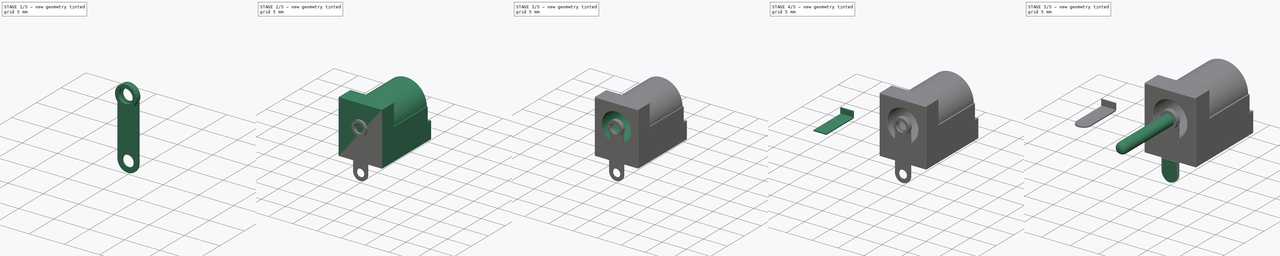
[diagram: build sequence overview — one tinted view per stage of 5, left to right]
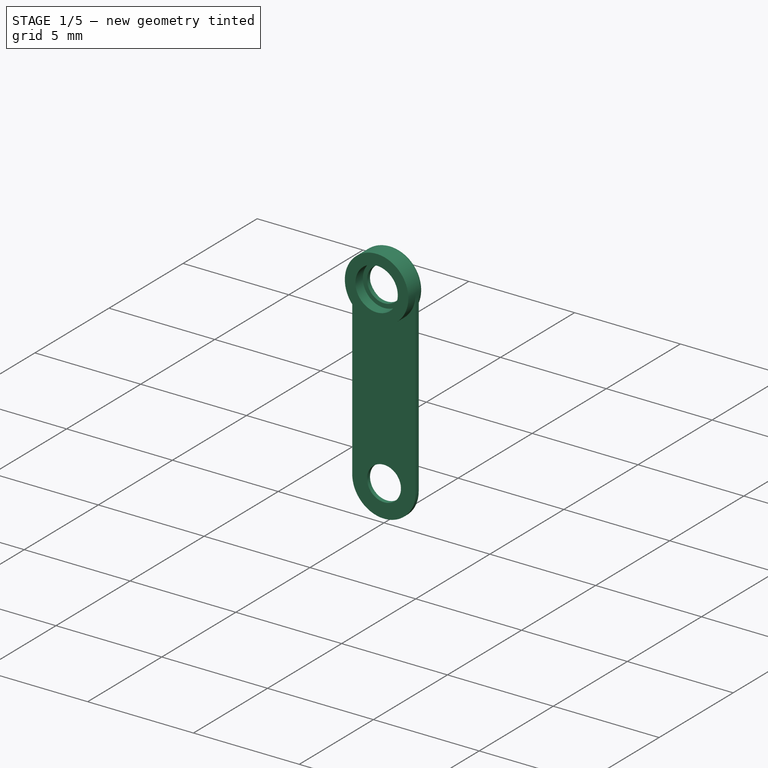
[diagram: stage 1 of 5 — iso view after this stage's code; geometry added in this stage tinted green]
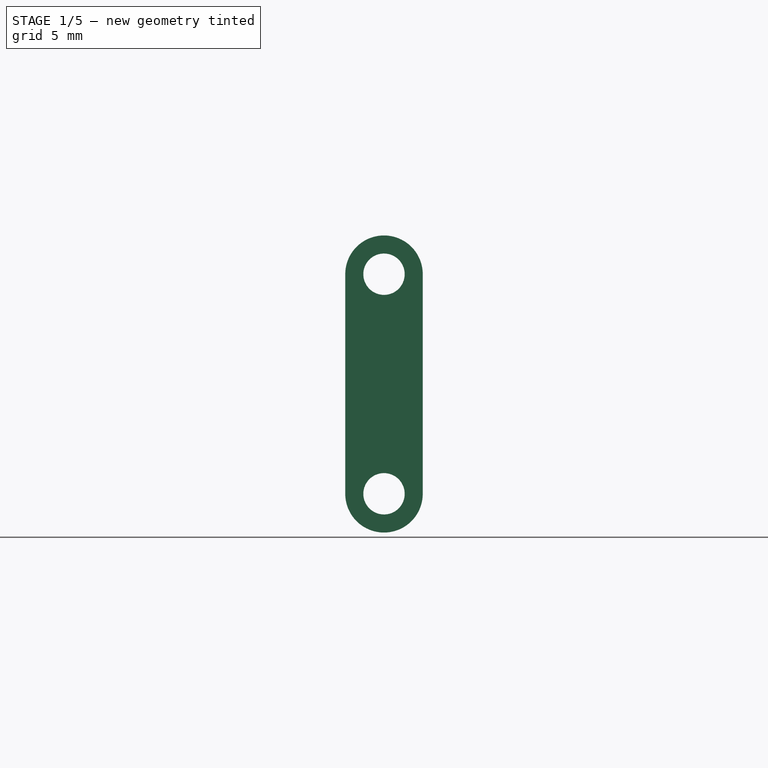
[diagram: stage 1 of 5 — front view after this stage's code; geometry added in this stage tinted green]
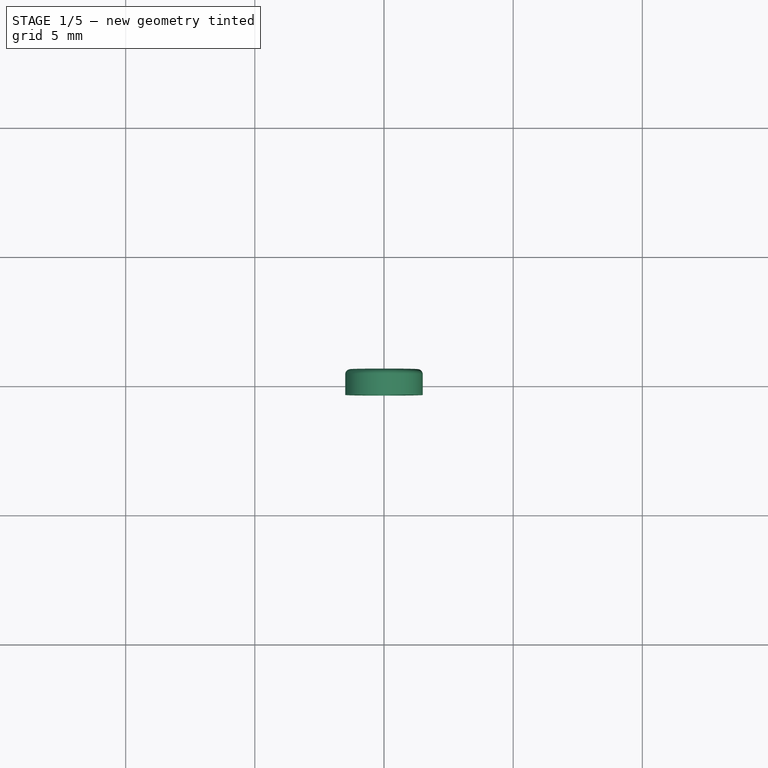
[diagram: stage 1 of 5 — top view after this stage's code; geometry added in this stage tinted green]
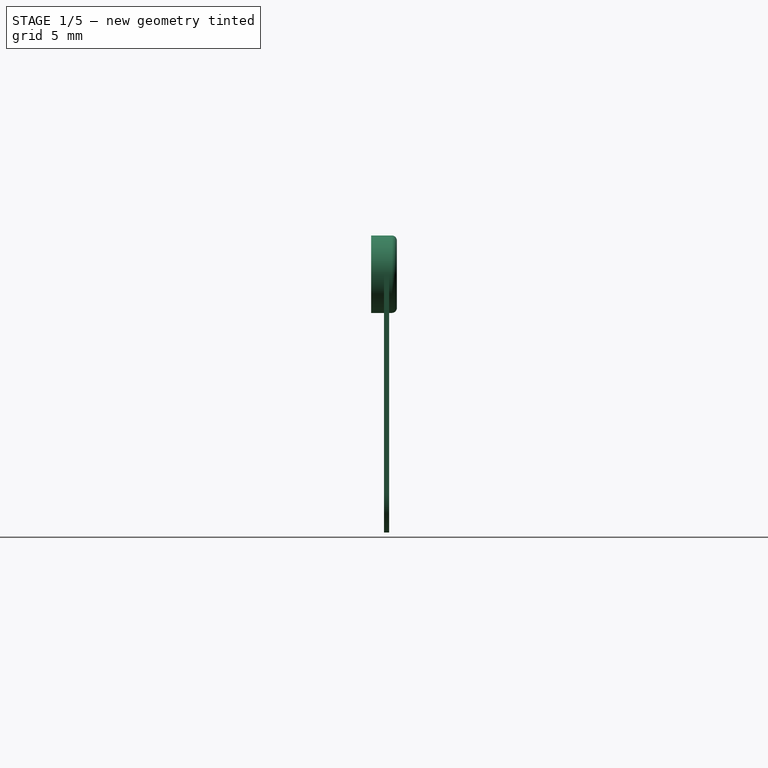
[diagram: stage 1 of 5 — right view after this stage's code; geometry added in this stage tinted green]
FCSTD DOCUMENT  (FreeCAD 0.17R13522 (Git))
Label: LUMBERG-NEB-21-R_color
License: All rights reserved
LicenseURL: http://fr.wikipedia.org/wiki/<copyright redacted>
objects: Sketcher::SketchObject×10, PartDesign::Fillet×9, PartDesign::Pad×7, PartDesign::Body×5, Part::Feature×5, PartDesign::Pocket×1, PartDesign::AdditivePipe×1
note: 47 computed .brp shape members not serialized (recipe doc carries the construction recipe); baked Part::Feature solids carry a one-line shape summary decoded from their .brp

FEATURE [PartDesign::Body] Body
  Group = -> [Sketch,Pad,Sketch001,Pad001,Sketch003,Pad002,Sketch004,Pocket,Fillet,Fillet002,Fillet003,Fillet004,Fillet006]
  Origin = -> Origin
  Tip = -> Fillet006
FEATURE [Sketcher::SketchObject] Sketch009
  MapMode = 5
  Placement = pos=(0,0,0) rot=(1,0,0;1.5708rad)
  Support = -> [XZ_Plane004]
  sketch-geometry (2):
    g0: Circle CenterX=0 CenterY=0 CenterZ=0 NormalX=0 NormalY=0 NormalZ=1 AngleXU=0 Radius=1.5
    g1: Circle CenterX=0 CenterY=0 CenterZ=0 NormalX=0 NormalY=0 NormalZ=1 AngleXU=0 Radius=1
  constraints (4):
    c: Coincident(g0,g-1)
    c: Radius(g0) = 1.5
    c: Coincident(g1,g-1)
    c: Radius(g1) = 1
FEATURE [Sketcher::SketchObject] Sketch010
  MapMode = 5
  Placement = pos=(0,0,0) rot=(1,0,0;1.5708rad)
  Support = -> [XZ_Plane004]
  expr: Constraints[9] = 6.5mm + 3.5mm - 1.5mm
  sketch-geometry (6):
    g0: LineSegment StartX=1.5 StartY=0 StartZ=0 EndX=1.5 EndY=-8.5 EndZ=0
    g1: LineSegment StartX=-1.5 StartY=-8.5 StartZ=0 EndX=-1.5 EndY=0 EndZ=0
    g2: ArcOfCircle CenterX=0 CenterY=-8.5 CenterZ=0 NormalX=0 NormalY=0 NormalZ=1 AngleXU=0 Radius=1.5 StartAngle=3.14159 EndAngle=6.28319
    g3: Circle CenterX=0 CenterY=-8.5 CenterZ=0 NormalX=0 NormalY=0 NormalZ=1 AngleXU=0 Radius=0.8
    g4: ArcOfCircle CenterX=0 CenterY=0 CenterZ=0 NormalX=0 NormalY=0 NormalZ=1 AngleXU=0 Radius=1.5 StartAngle=0 EndAngle=3.14159
    g5: Circle CenterX=0 CenterY=0 CenterZ=0 NormalX=0 NormalY=0 NormalZ=1 AngleXU=0 Radius=0.8
  constraints (17):
    c: Vertical(g0)
    c: Vertical(g1)
    c: Coincident(g2,g0)
    c: Horizontal(g1,g0)
    c: Coincident(g3,g2)
    c: Coincident(g2,g1)
    c: DistanceX(g1,g0) = 3
    c: Horizontal(g2,g0)
    c: Radius(g3) = 0.8
    c: DistanceY(g2,g1) = 8.5
    c: DistanceY(g1,g-1) = 0
    c: Coincident(g4,g1)
    c: Coincident(g4,g0)
    c: Coincident(g4,g-1)
    c: Horizontal(g0,g1)
    c: Coincident(g5,g-1)
    c: Radius(g5) = 0.8
FEATURE [PartDesign::Pad] Pad005
  Length = 0.2
  Length2 = 100
  Placement = pos=(0,0,0) rot=(1,0,0;1.5708rad)
  Profile = -> Sketch010
  Reversed = true
  Type = 0
FEATURE [PartDesign::Pad] Pad006
  BaseFeature = -> Pad005
  Length = 1
  Length2 = 100
  Midplane = true
  Placement = pos=(0,0,0) rot=(1,0,0;1.5708rad)
  Profile = -> Sketch009
  Type = 0
FEATURE [PartDesign::Fillet] Fillet007
  Base = -> Pad006 [Edge20]
  BaseFeature = -> Pad006
  Placement = pos=(0,0,0) rot=(1,0,0;1.5708rad)
  Radius = 0.2
FEATURE [PartDesign::Fillet] Fillet008
  Base = -> Fillet007 [Edge14]
  BaseFeature = -> Fillet007
  Placement = pos=(0,0,0) rot=(1,0,0;1.5708rad)
  Radius = 0.1
FEATURE [PartDesign::Body] Body004  label="pin3"
  Group = -> [Sketch010,Pad005,Sketch009,Pad006,Fillet007,Fillet008]
  Origin = -> Origin004
  Placement = pos=(0,13.5,0) rot=(0,0,1;0rad)
  Tip = -> Fillet008
FEATURE [Part::Feature] Body005  label="Body001"
  shape: bbox 9.309 x 14.5 x 11.15 mm, 46 faces (baked)
FEATURE [Part::Feature] Body003001  label="pin004"
  Placement = pos=(3.5,0,-2.5) rot=(0.57735,-0.57735,-0.57735;2.0944rad)
  shape: bbox 1.3 x 2.5 x 7.6 mm, 16 faces (baked)
FEATURE [Part::Feature] Body001001  label="central_contact001"
  Placement = pos=(0,14,0) rot=(0,0,1;0rad)
  shape: bbox 1.95 x 12.8 x 1.95 mm, 4 faces (baked)
FEATURE [Part::Feature] Body002001  label="pin005"
  Placement = pos=(0,7.5,0) rot=(0,0,1;0rad)
  shape: bbox 2.5 x 0.2 x 3.5 mm, 6 faces (baked)
FEATURE [Part::Feature] Body004001  label="pin006"
  Placement = pos=(0,13.5,0) rot=(0,0,1;0rad)
  shape: bbox 3.247 x 1 x 11.62 mm, 18 faces (baked)
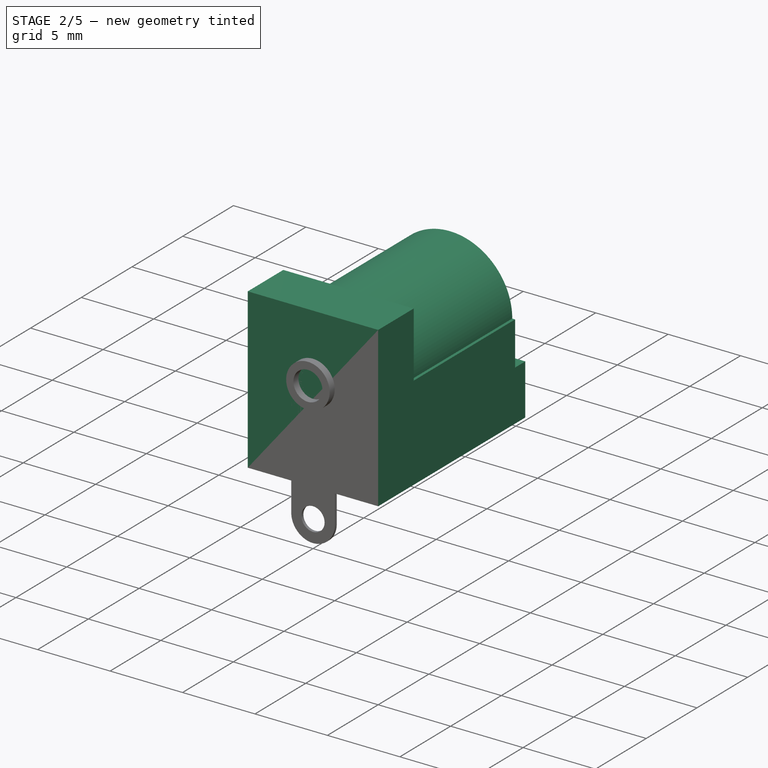
[diagram: stage 2 of 5 — iso view after this stage's code; geometry added in this stage tinted green]
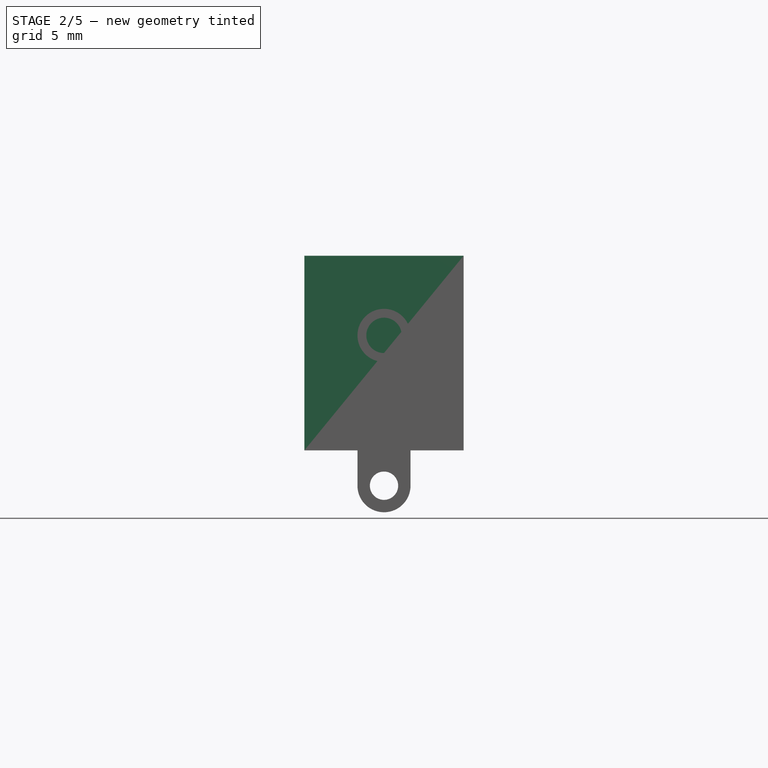
[diagram: stage 2 of 5 — front view after this stage's code; geometry added in this stage tinted green]
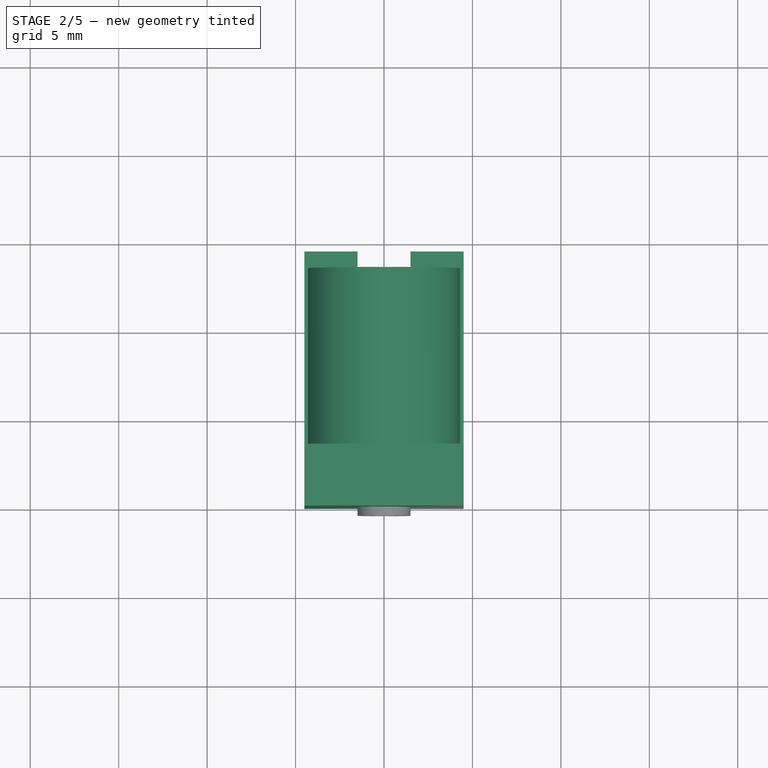
[diagram: stage 2 of 5 — top view after this stage's code; geometry added in this stage tinted green]
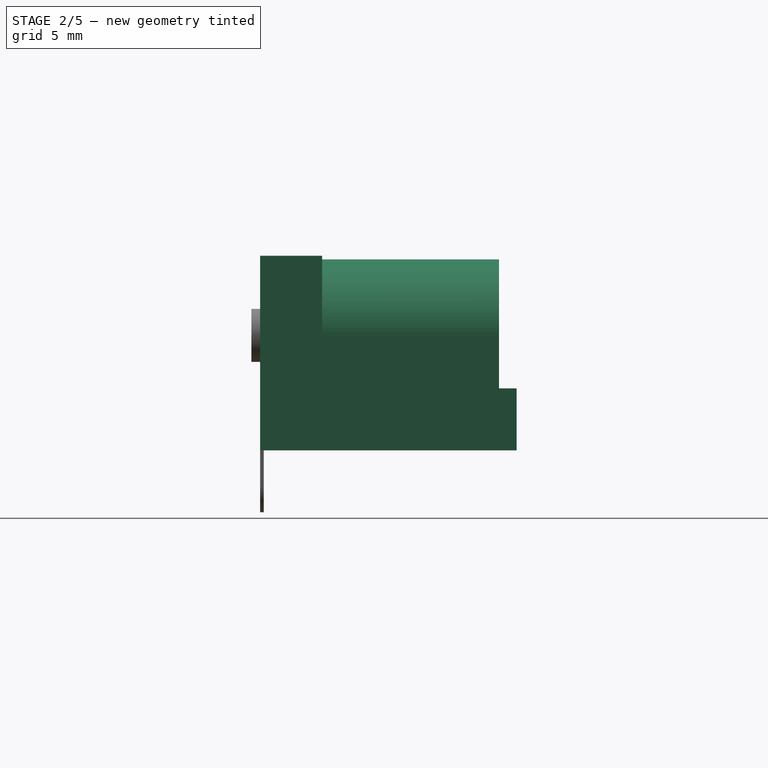
[diagram: stage 2 of 5 — right view after this stage's code; geometry added in this stage tinted green]
FEATURE [Sketcher::SketchObject] Sketch
  MapMode = 5
  Placement = pos=(0,0,0) rot=(1,0,0;1.5708rad)
  Support = -> [XZ_Plane]
  sketch-geometry (4):
    g0: LineSegment StartX=-4.5 StartY=4.5 StartZ=0 EndX=4.5 EndY=4.5 EndZ=0
    g1: LineSegment StartX=4.5 StartY=4.5 StartZ=0 EndX=4.5 EndY=-6.5 EndZ=0
    g2: LineSegment StartX=4.5 StartY=-6.5 StartZ=0 EndX=-4.5 EndY=-6.5 EndZ=0
    g3: LineSegment StartX=-4.5 StartY=-6.5 StartZ=0 EndX=-4.5 EndY=4.5 EndZ=0
  constraints (12):
    c: Coincident(g0,g1)
    c: Coincident(g1,g2)
    c: Coincident(g2,g3)
    c: Coincident(g3,g0)
    c: Horizontal(g0)
    c: Horizontal(g2)
    c: Vertical(g1)
    c: Vertical(g3)
    c: DistanceY(g0) = 4.5
    c: DistanceX(g0,g0) = 9  'body_width'
    c: Symmetric(g0,g0,g-2)
    c: DistanceY(g2,g-1) = 6.5
FEATURE [PartDesign::Pad] Pad
  Length = 3.5
  Length2 = 100
  Placement = pos=(0,0,0) rot=(1,0,0;1.5708rad)
  Profile = -> Sketch
  Reversed = true
  Type = 0
FEATURE [Sketcher::SketchObject] Sketch001
  MapMode = 5
  Placement = pos=(0,3.5,0) rot=(-1,0,0;1.5708rad)
  Support = -> [Pad]
  expr: Constraints[7] = Sketch.Constraints.body_width
  sketch-geometry (6):
    g0: ArcOfCircle CenterX=0 CenterY=0 CenterZ=0 NormalX=0 NormalY=0 NormalZ=1 AngleXU=0 Radius=4.3 StartAngle=3.14159 EndAngle=6.28319
    g1: LineSegment StartX=-4.5 StartY=0 StartZ=0 EndX=-4.5 EndY=6.5 EndZ=0
    g2: LineSegment StartX=-4.5 StartY=6.5 StartZ=0 EndX=4.5 EndY=6.5 EndZ=0
    g3: LineSegment StartX=4.5 StartY=6.5 StartZ=0 EndX=4.5 EndY=0 EndZ=0
    g4: LineSegment StartX=-4.5 StartY=0 StartZ=0 EndX=-4.3 EndY=0 EndZ=0
    g5: LineSegment StartX=4.3 StartY=0 StartZ=0 EndX=4.5 EndY=0 EndZ=0
  constraints (18):
    c: Vertical(g1)
    c: Coincident(g2,g1)
    c: Horizontal(g2)
    c: Coincident(g3,g2)
    c: Vertical(g3)
    c: DistanceY(g-1,g2) = 6.5
    c: Symmetric(g2,g1,g-2)
    c: DistanceX(g2,g2) = 9
    c: Coincident(g0,g-1)
    c: Horizontal(g0,g-1)
    c: Coincident(g4,g1)
    c: Coincident(g4,g0)
    c: Horizontal(g4)
    c: Radius(g0) = 4.3
    c: Coincident(g5,g0)
    c: Coincident(g5,g3)
    c: Horizontal(g5)
    c: Horizontal(g3,g1)
FEATURE [PartDesign::Pad] Pad001
  BaseFeature = -> Pad
  Length = 10
  Length2 = 100
  Placement = pos=(0,0,0) rot=(1,0,0;1.5708rad)
  Profile = -> Sketch001
  Type = 0
  expr: Length = 13.5 - 3.5
FEATURE [Sketcher::SketchObject] Sketch003
  MapMode = 5
  Placement = pos=(0,13.5,0) rot=(-1,0,0;1.5708rad)
  expr: Constraints[19] = (9 - 3) / 2
  expr: Constraints[16] = -Sketch.Constraints.body_width / 2
  sketch-geometry (8):
    g0: LineSegment StartX=-1.5 StartY=6.5 StartZ=0 EndX=-4.5 EndY=6.5 EndZ=0
    g1: LineSegment StartX=-4.5 StartY=6.5 StartZ=0 EndX=-4.5 EndY=3 EndZ=0
    g2: LineSegment StartX=-4.5 StartY=3 StartZ=0 EndX=-1.5 EndY=3 EndZ=0
    g3: LineSegment StartX=-1.5 StartY=3 StartZ=0 EndX=-1.5 EndY=6.5 EndZ=0
    g4: LineSegment StartX=1.5 StartY=6.5 StartZ=0 EndX=4.5 EndY=6.5 EndZ=0
    g5: LineSegment StartX=4.5 StartY=6.5 StartZ=0 EndX=4.5 EndY=3 EndZ=0
    g6: LineSegment StartX=4.5 StartY=3 StartZ=0 EndX=1.5 EndY=3 EndZ=0
    g7: LineSegment StartX=1.5 StartY=3 StartZ=0 EndX=1.5 EndY=6.5 EndZ=0
  constraints (23):
    c: Coincident(g0,g1)
    c: Coincident(g1,g2)
    c: Coincident(g2,g3)
    c: Coincident(g3,g0)
    c: Horizontal(g0)
    c: Horizontal(g2)
    c: Vertical(g1)
    c: Vertical(g3)
    c: Coincident(g4,g5)
    c: Coincident(g5,g6)
    c: Coincident(g6,g7)
    c: Coincident(g7,g4)
    c: Horizontal(g4)
    c: Horizontal(g6)
    c: Vertical(g5)
    c: Vertical(g7)
    c: DistanceX(g0) = -4.5
    c: DistanceY(g0) = 6.5
    c: DistanceY(g1,g1) = 3.5
    c: DistanceX(g0,g0) = 3
    c: Symmetric(g0,g4,g-2)
    c: Symmetric(g4,g0,g-2)
    c: Symmetric(g6,g2,g-2)
FEATURE [PartDesign::Pad] Pad002
  BaseFeature = -> Pad001
  Length = 1
  Length2 = 100
  Placement = pos=(0,0,0) rot=(1,0,0;1.5708rad)
  Profile = -> Sketch003
  Type = 0
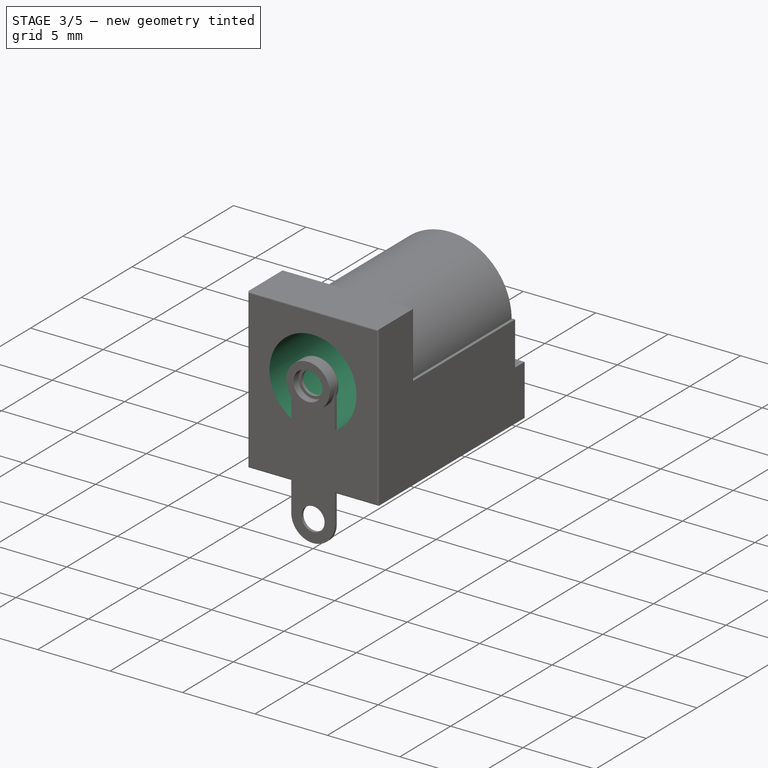
[diagram: stage 3 of 5 — iso view after this stage's code; geometry added in this stage tinted green]
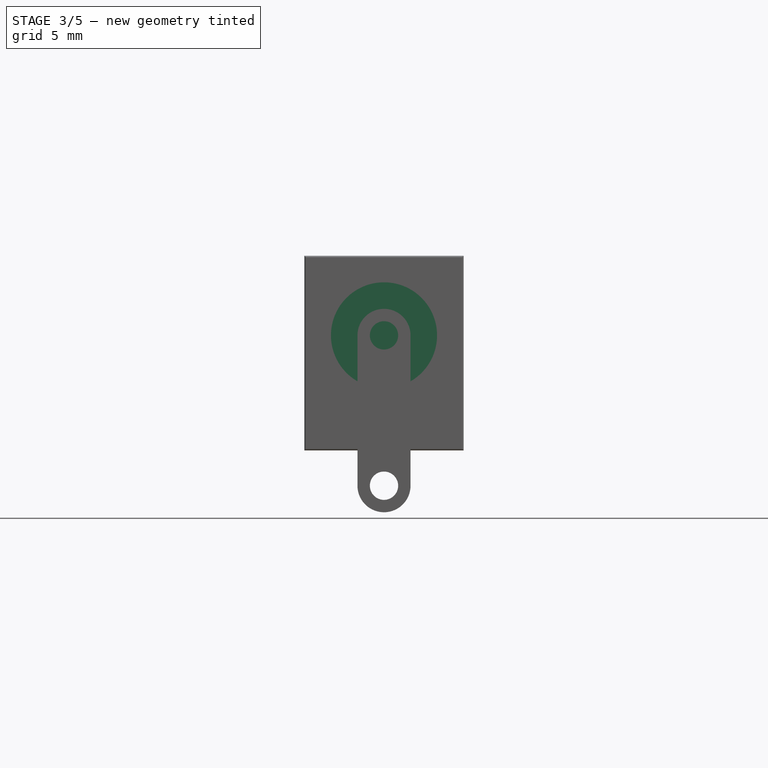
[diagram: stage 3 of 5 — front view after this stage's code; geometry added in this stage tinted green]
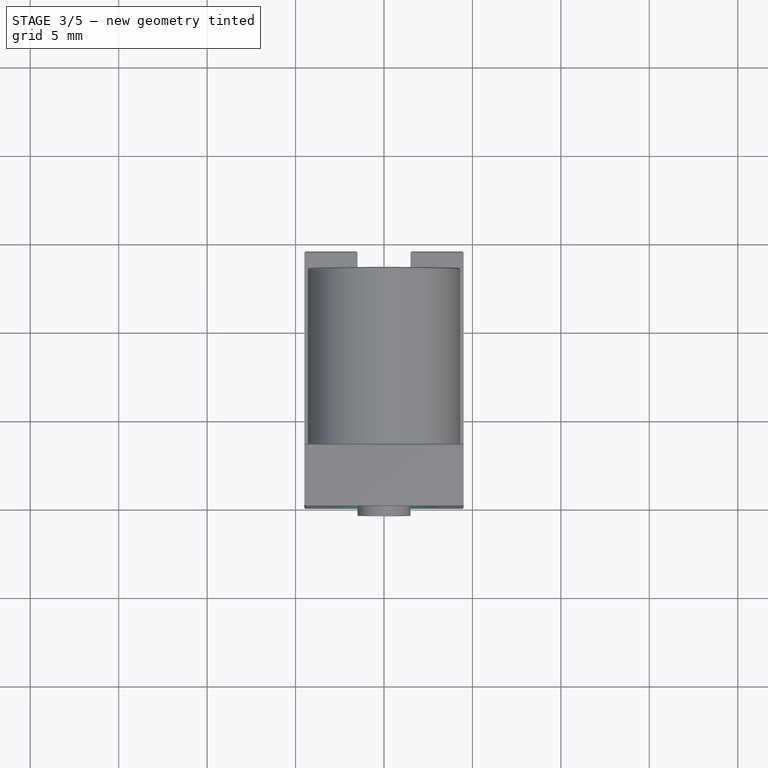
[diagram: stage 3 of 5 — top view after this stage's code; geometry added in this stage tinted green]
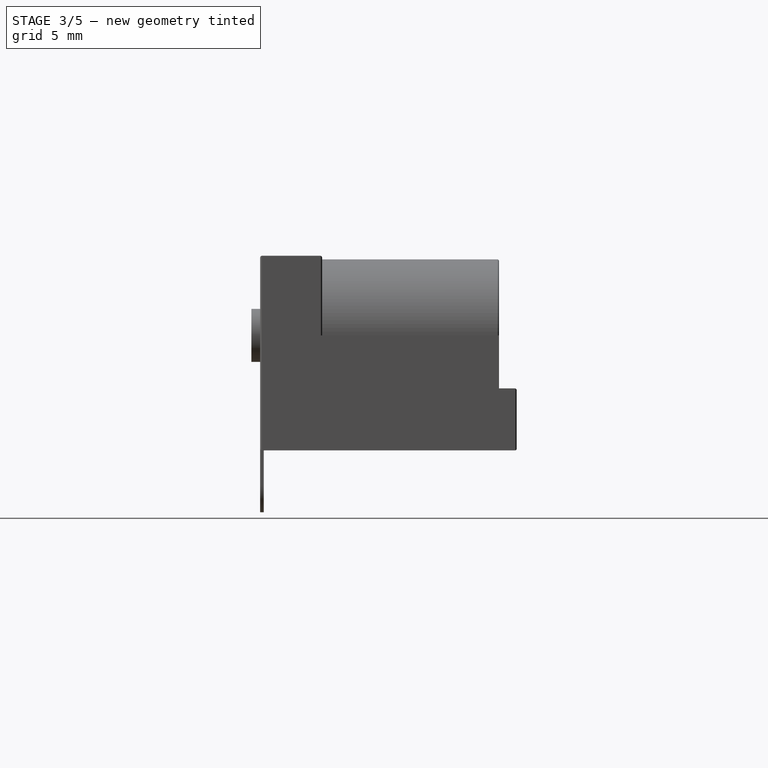
[diagram: stage 3 of 5 — right view after this stage's code; geometry added in this stage tinted green]
FEATURE [Sketcher::SketchObject] Sketch004
  MapMode = 5
  Placement = pos=(0,0,0) rot=(1,0,0;1.5708rad)
  Support = -> [Pad002]
  sketch-geometry (1):
    g0: Circle CenterX=0 CenterY=0 CenterZ=0 NormalX=0 NormalY=0 NormalZ=1 AngleXU=0 Radius=3
  constraints (2):
    c: Coincident(g0,g-1)
    c: Radius(g0) = 3
FEATURE [PartDesign::Pocket] Pocket
  BaseFeature = -> Pad002
  Length = 10
  Length2 = 100
  Placement = pos=(0,0,0) rot=(1,0,0;1.5708rad)
  Profile = -> Sketch004
  Type = 0
FEATURE [PartDesign::Body] Body001  label="central_contact"
  Group = -> [Sketch005,Pad003,Fillet001]
  Origin = -> Origin001
  Placement = pos=(0,14,0) rot=(0,0,1;0rad)
  Tip = -> Fillet001
FEATURE [PartDesign::Fillet] Fillet
  Base = -> Pocket [Edge3,Edge9,Edge13,Edge6,Edge4,Edge10,Edge8]
  BaseFeature = -> Pocket
  Placement = pos=(0,0,0) rot=(1,0,0;1.5708rad)
  Radius = 0.1
FEATURE [PartDesign::Fillet] Fillet002
  Base = -> Fillet [Edge55]
  BaseFeature = -> Fillet
  Placement = pos=(0,0,0) rot=(1,0,0;1.5708rad)
  Radius = 0.1
FEATURE [PartDesign::Fillet] Fillet003
  Base = -> Fillet002 [Edge53,Edge69,Edge70,Edge55,Edge44,Edge42,Edge65,Edge67]
  BaseFeature = -> Fillet002
  Placement = pos=(0,0,0) rot=(1,0,0;1.5708rad)
  Radius = 0.1
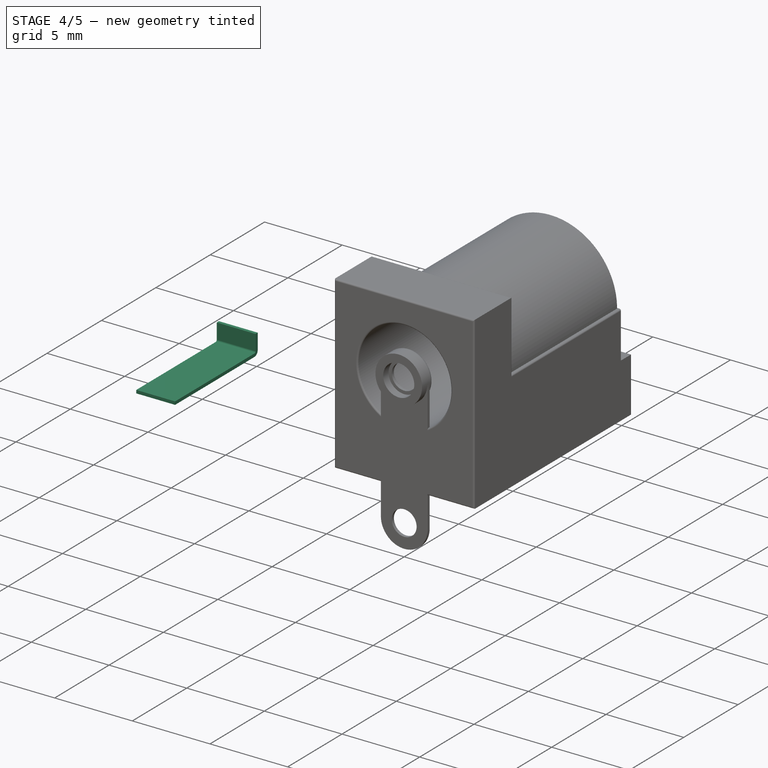
[diagram: stage 4 of 5 — iso view after this stage's code; geometry added in this stage tinted green]
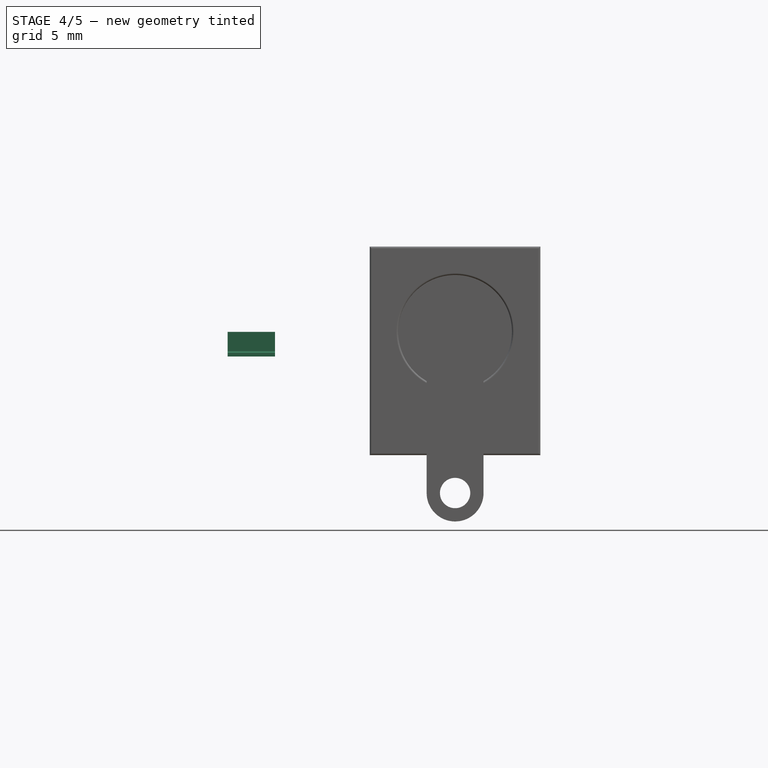
[diagram: stage 4 of 5 — front view after this stage's code; geometry added in this stage tinted green]
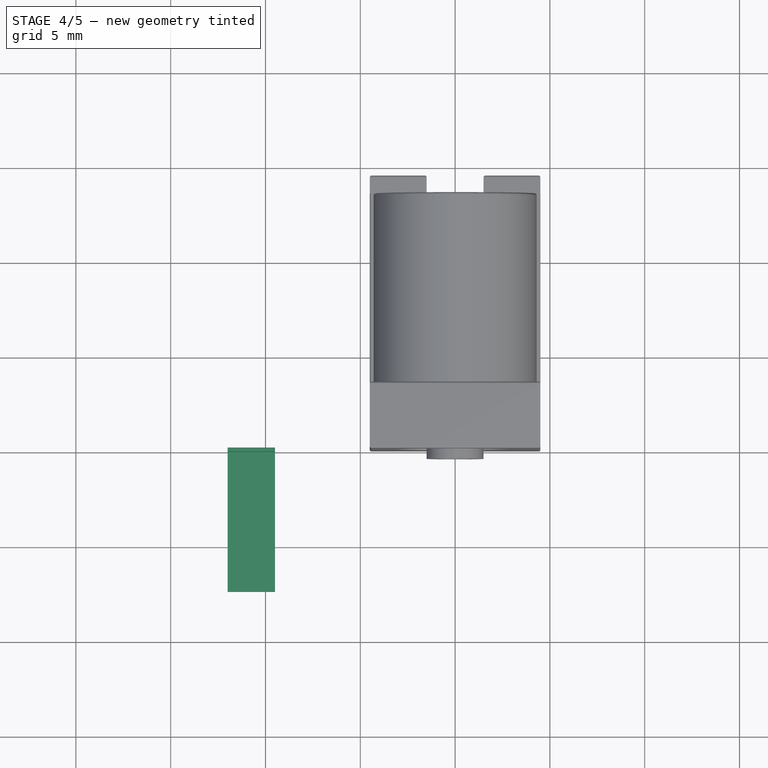
[diagram: stage 4 of 5 — top view after this stage's code; geometry added in this stage tinted green]
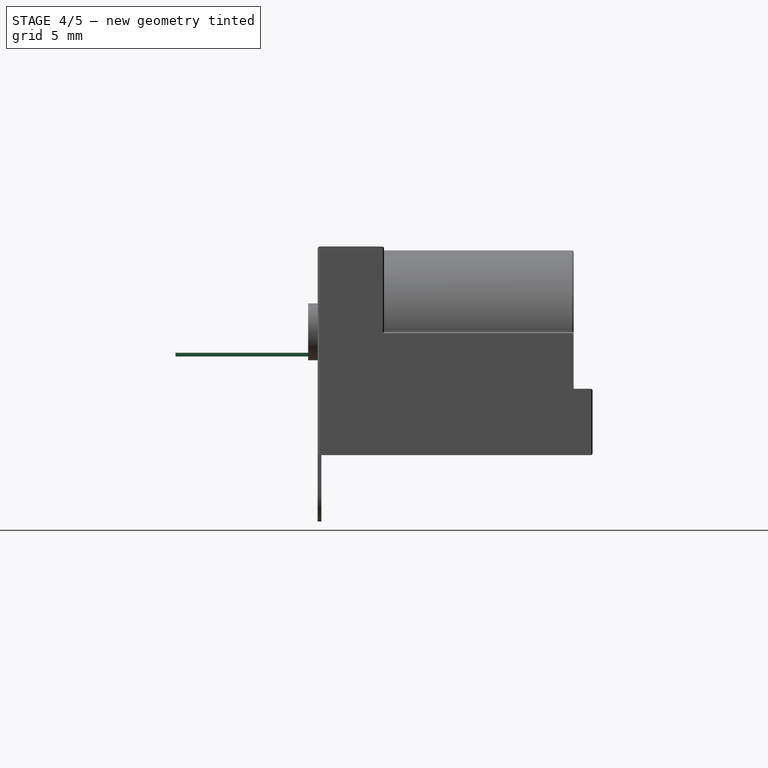
[diagram: stage 4 of 5 — right view after this stage's code; geometry added in this stage tinted green]
FEATURE [PartDesign::Fillet] Fillet004
  Base = -> Fillet003 [Edge28,Edge45]
  BaseFeature = -> Fillet003
  Placement = pos=(0,0,0) rot=(1,0,0;1.5708rad)
  Radius = 0.1
FEATURE [PartDesign::Body] Body002  label="pin1"
  Group = -> [Sketch006,Pad004]
  Origin = -> Origin002
  Placement = pos=(0,7.5,0) rot=(0,0,1;0rad)
  Tip = -> Pad004
FEATURE [Sketcher::SketchObject] Sketch007
  MapMode = 5
  Support = -> [XY_Plane003]
  sketch-geometry (4):
    g0: LineSegment StartX=-12 StartY=0.1 StartZ=0 EndX=-9.5 EndY=0.1 EndZ=0
    g1: LineSegment StartX=-9.5 StartY=0.1 StartZ=0 EndX=-9.5 EndY=-0.1 EndZ=0
    g2: LineSegment StartX=-9.5 StartY=-0.1 StartZ=0 EndX=-12 EndY=-0.1 EndZ=0
    g3: LineSegment StartX=-12 StartY=-0.1 StartZ=0 EndX=-12 EndY=0.1 EndZ=0
  constraints (12):
    c: Coincident(g0,g1)
    c: Coincident(g1,g2)
    c: Coincident(g2,g3)
    c: Coincident(g3,g0)
    c: Horizontal(g0)
    c: Horizontal(g2)
    c: Vertical(g1)
    c: Vertical(g3)
    c: DistanceX(g0,g0) = 2.5  'pin_width'
    c: DistanceY(g3,g3) = 0.2
    c: DistanceY(g2) = -0.1
    c: DistanceX(g-1,g1) = -9.5
FEATURE [Sketcher::SketchObject] Sketch008
  MapMode = 5
  Placement = pos=(0,0,0) rot=(0.57735,0.57735,0.57735;2.0944rad)
  Support = -> [YZ_Plane003]
  sketch-geometry (3):
    g0: LineSegment StartX=0 StartY=0 StartZ=0 EndX=0 EndY=-1 EndZ=0
    g1: ArcOfCircle CenterX=-0.2 CenterY=-1 CenterZ=0 NormalX=0 NormalY=0 NormalZ=1 AngleXU=0 Radius=0.2 StartAngle=4.71239 EndAngle=6.28319
    g2: LineSegment StartX=-0.2 StartY=-1.2 StartZ=0 EndX=-7.5 EndY=-1.2 EndZ=0
  constraints (8):
    c: Coincident(g0,g-1)
    c: PointOnObject(g0,g-2)
    c: Horizontal(g2)
    c: DistanceY(g0,g0) = 1
    c: Radius(g1) = 0.2
    c: Tangent(g1,g0) = 1.5708
    c: DistanceX(g2,g0) = 7.5
    c: Tangent(g2,g1) = 1.5708
FEATURE [PartDesign::AdditivePipe] AdditivePipe
  AuxilleryCurvelinear = true
  AuxillerySpineTangent = false
  Binormal = (0,0,0)
  Mode = 0
  Profile = -> Sketch007
  Spine = -> Sketch008
  SpineTangent = false
  Transformation = 0
  Transition = 0
FEATURE [PartDesign::Body] Body003  label="pin2"
  Group = -> [Sketch007,Sketch008,AdditivePipe,Fillet005]
  Origin = -> Origin003
  Placement = pos=(3.5,0,-2.5) rot=(0.57735,-0.57735,-0.57735;2.0944rad)
  Tip = -> Fillet005
FEATURE [PartDesign::Fillet] Fillet006
  Base = -> Fillet004 [Edge102]
  BaseFeature = -> Fillet004
  Placement = pos=(0,0,0) rot=(1,0,0;1.5708rad)
  Radius = 0.1
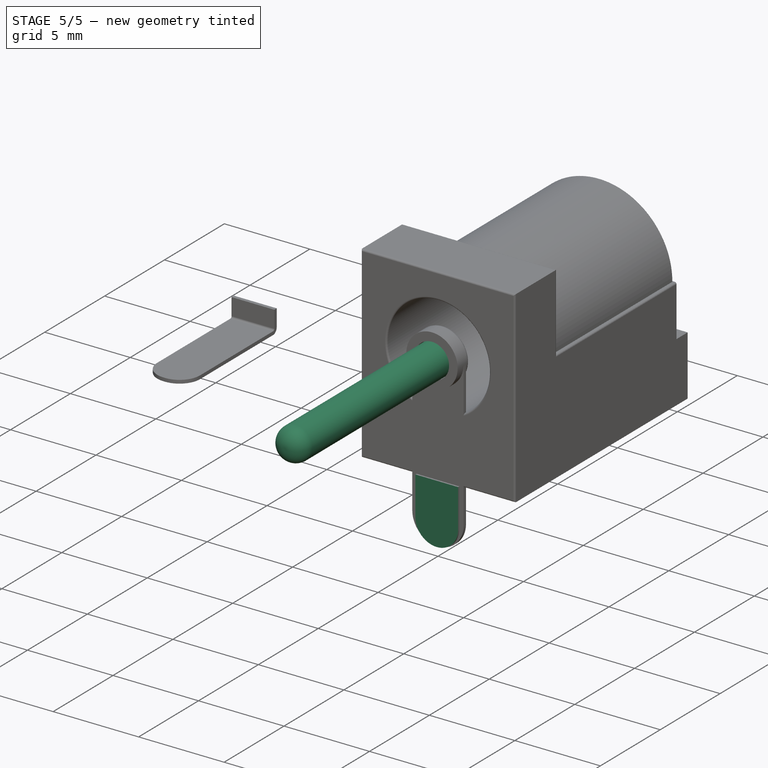
[diagram: stage 5 of 5 — iso view after this stage's code; geometry added in this stage tinted green]
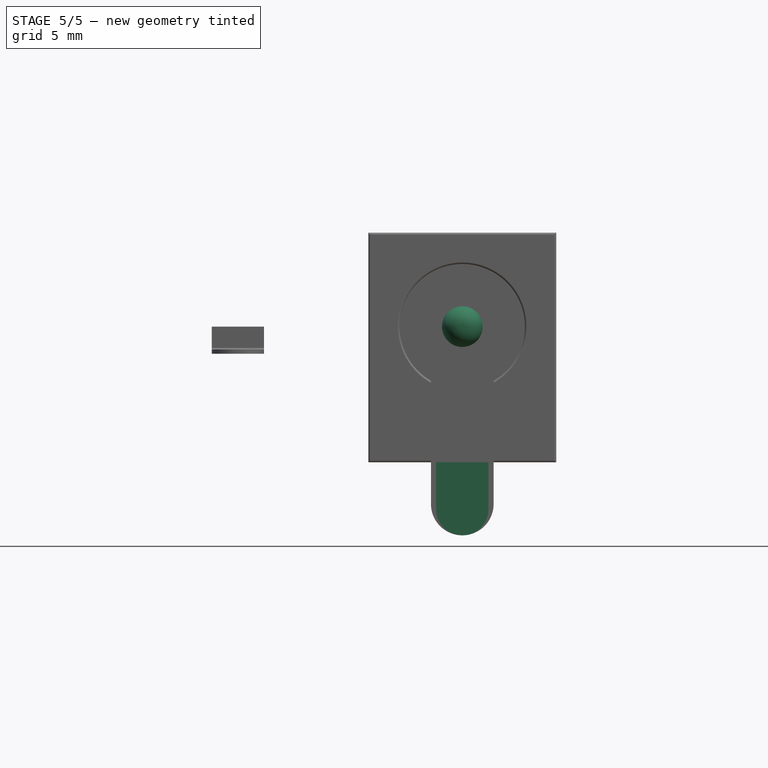
[diagram: stage 5 of 5 — front view after this stage's code; geometry added in this stage tinted green]
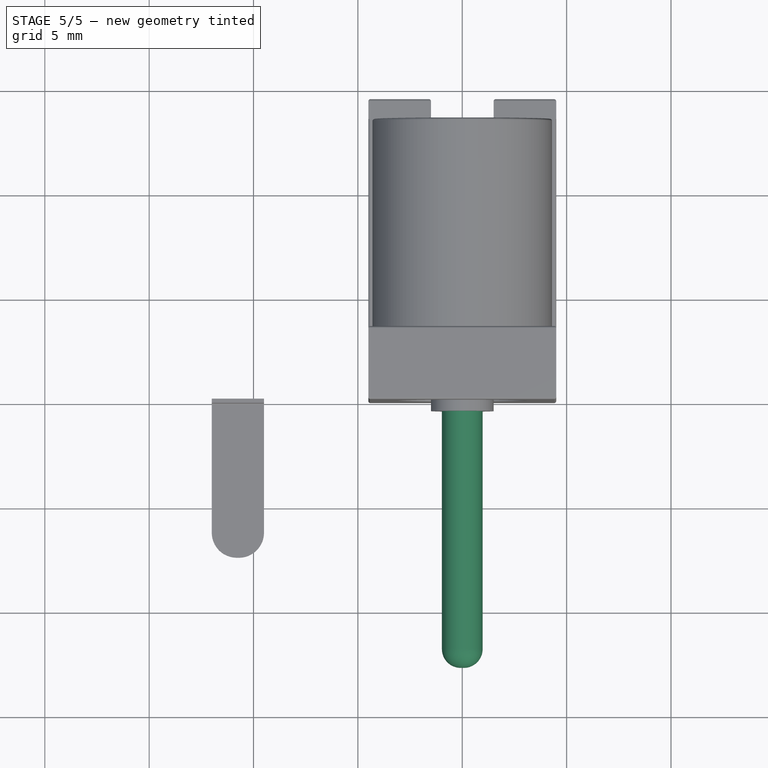
[diagram: stage 5 of 5 — top view after this stage's code; geometry added in this stage tinted green]
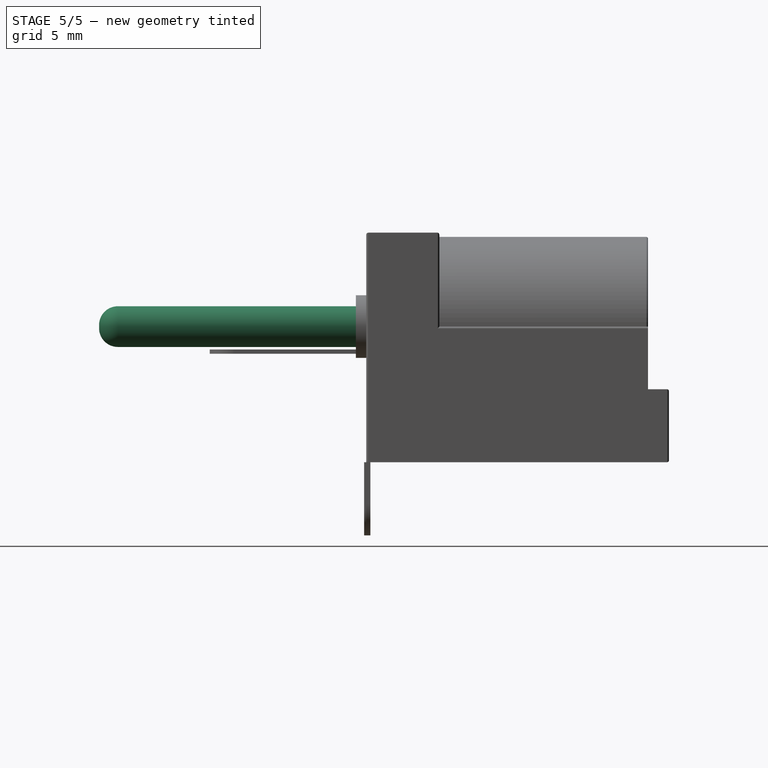
[diagram: stage 5 of 5 — right view after this stage's code; geometry added in this stage tinted green]
FEATURE [Sketcher::SketchObject] Sketch005
  MapMode = 5
  Placement = pos=(0,0,0) rot=(1,0,0;1.5708rad)
  Support = -> [XZ_Plane001]
  expr: Constraints[1] = 1.95 / 2
  sketch-geometry (1):
    g0: Circle CenterX=0 CenterY=0 CenterZ=0 NormalX=0 NormalY=0 NormalZ=1 AngleXU=0 Radius=0.975
  constraints (2):
    c: Coincident(g0,g-1)
    c: Radius(g0) = 0.975
FEATURE [PartDesign::Pad] Pad003
  Length = 12.8
  Length2 = 100
  Placement = pos=(0,0,0) rot=(1,0,0;1.5708rad)
  Profile = -> Sketch005
  Type = 0
  expr: Length = 14 - 1.2
FEATURE [PartDesign::Fillet] Fillet001
  Base = -> Pad003 [Edge3]
  BaseFeature = -> Pad003
  Placement = pos=(0,0,0) rot=(1,0,0;1.5708rad)
  Radius = 0.9
FEATURE [Sketcher::SketchObject] Sketch006
  MapMode = 5
  Placement = pos=(0,0,0) rot=(1,0,0;1.5708rad)
  Support = -> [XZ_Plane002]
  expr: Constraints[11] = 3.5mm - Constraints.pin_width / 2
  sketch-geometry (4):
    g0: LineSegment StartX=-1.25 StartY=-6.5 StartZ=0 EndX=1.25 EndY=-6.5 EndZ=0
    g1: LineSegment StartX=1.25 StartY=-6.5 StartZ=0 EndX=1.25 EndY=-8.75 EndZ=0
    g2: LineSegment StartX=-1.25 StartY=-8.75 StartZ=0 EndX=-1.25 EndY=-6.5 EndZ=0
    g3: ArcOfCircle CenterX=0 CenterY=-8.75 CenterZ=0 NormalX=0 NormalY=0 NormalZ=1 AngleXU=0 Radius=1.25 StartAngle=3.14159 EndAngle=6.28319
  constraints (13):
    c: Coincident(g0,g1)
    c: Coincident(g2,g0)
    c: Horizontal(g0)
    c: Vertical(g1)
    c: Vertical(g2)
    c: PointOnObject(g3,g-2)
    c: Coincident(g3,g1)
    c: Horizontal(g2,g1)
    c: Coincident(g3,g2)
    c: DistanceX(g0,g0) = 2.5  'pin_width'
    c: Horizontal(g3,g1)
    c: DistanceY(g3,g0) = 2.25
    c: DistanceY(g0,g-1) = 6.5
FEATURE [PartDesign::Pad] Pad004
  Length = 0.2
  Length2 = 100
  Midplane = true
  Placement = pos=(0,0,0) rot=(1,0,0;1.5708rad)
  Profile = -> Sketch006
  Type = 0
FEATURE [PartDesign::Fillet] Fillet005
  Base = -> AdditivePipe [Edge26,Edge24]
  BaseFeature = -> AdditivePipe
  Radius = 1.2
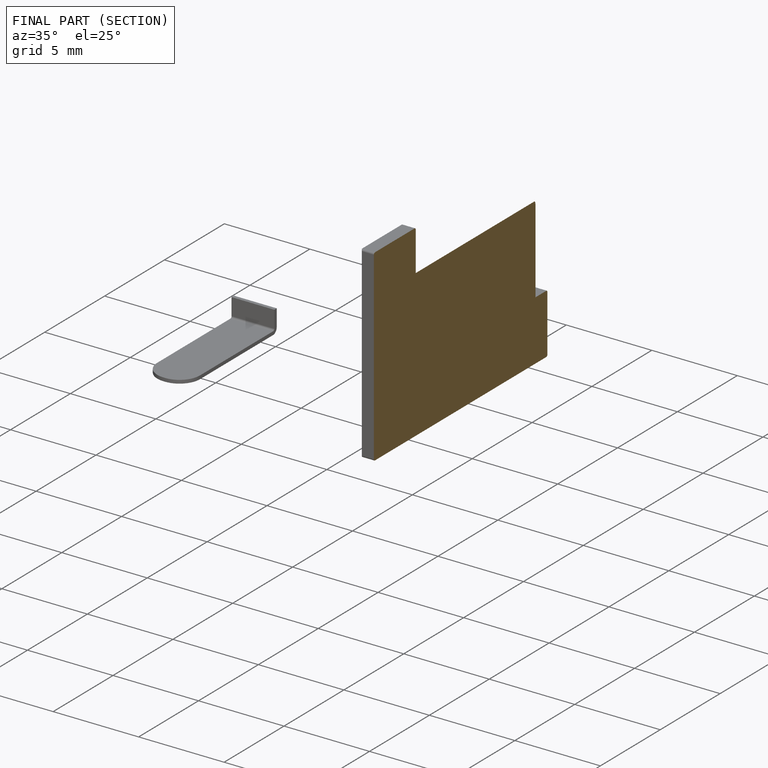
[diagram: finished part — half-section view (interior)]
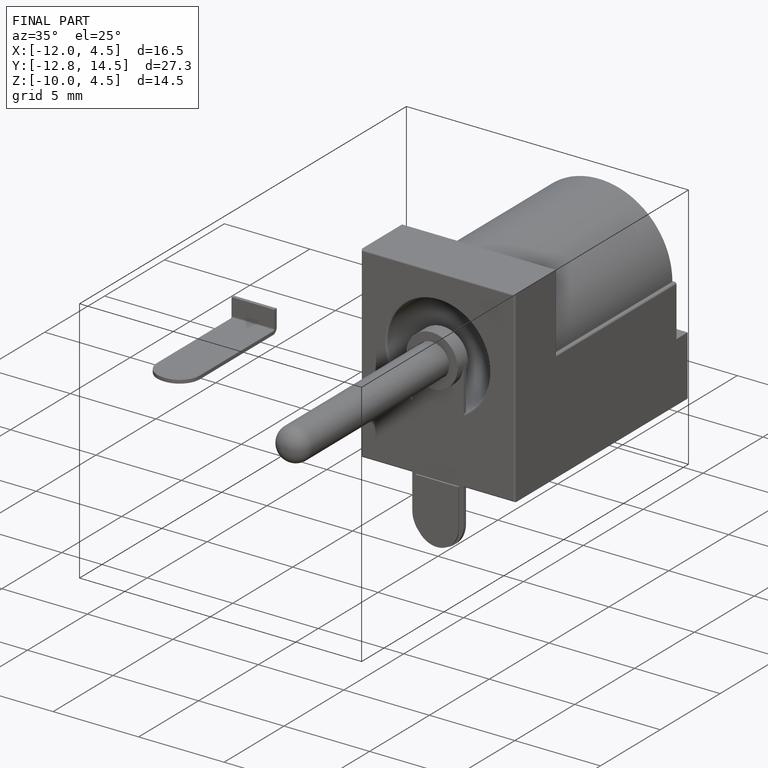
[diagram: finished part — iso view with bounding-box wireframe]
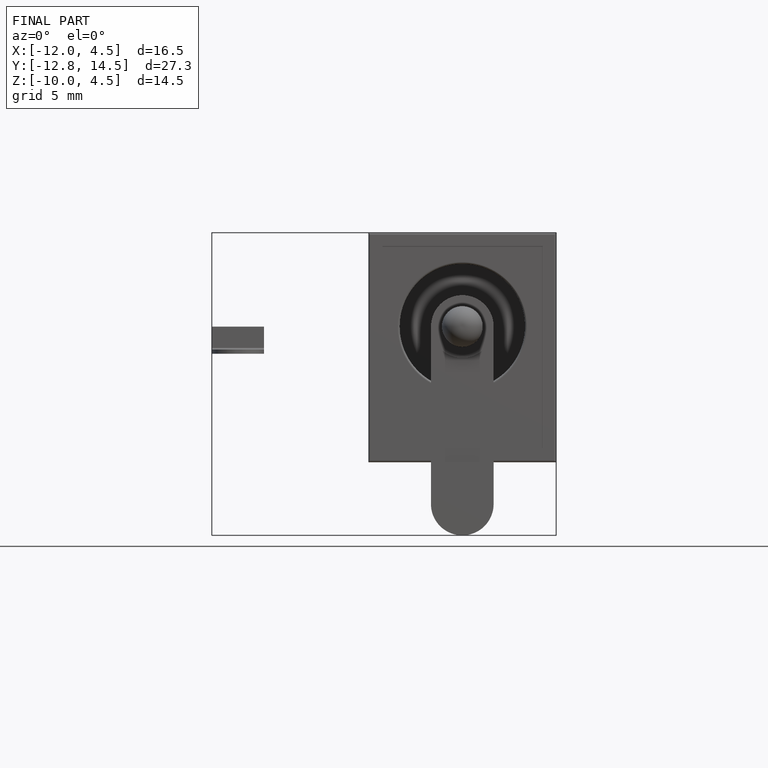
[diagram: finished part — front view with bounding-box wireframe]
